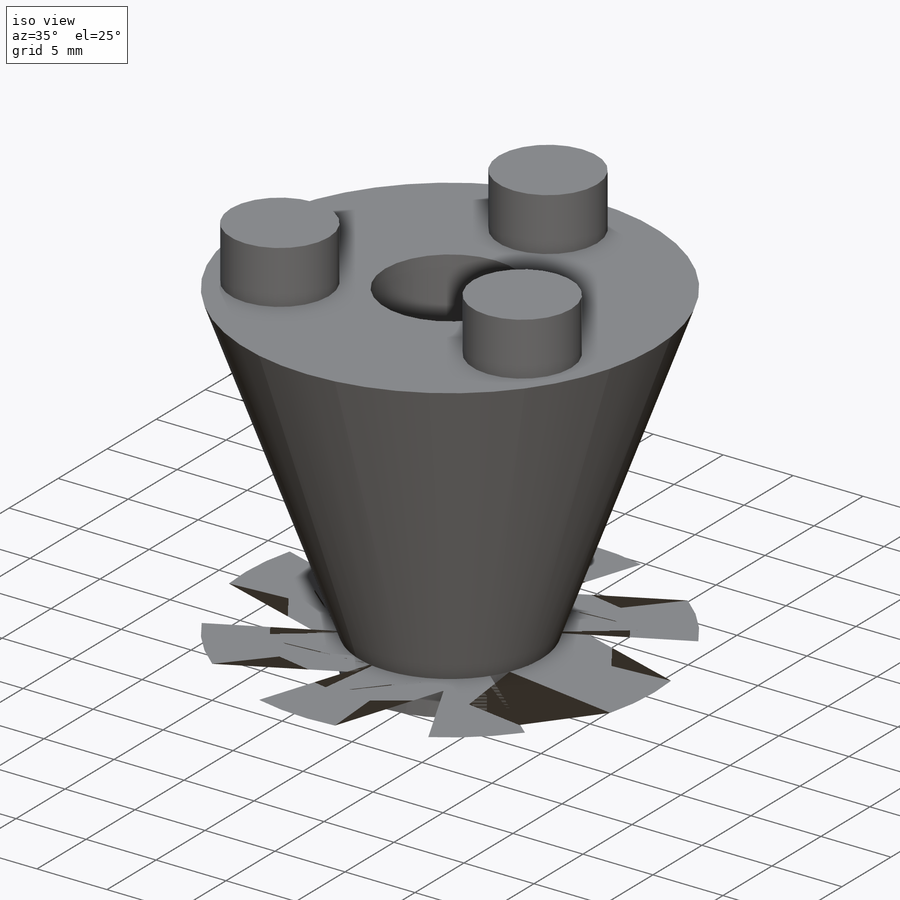
[diagram: iso view]
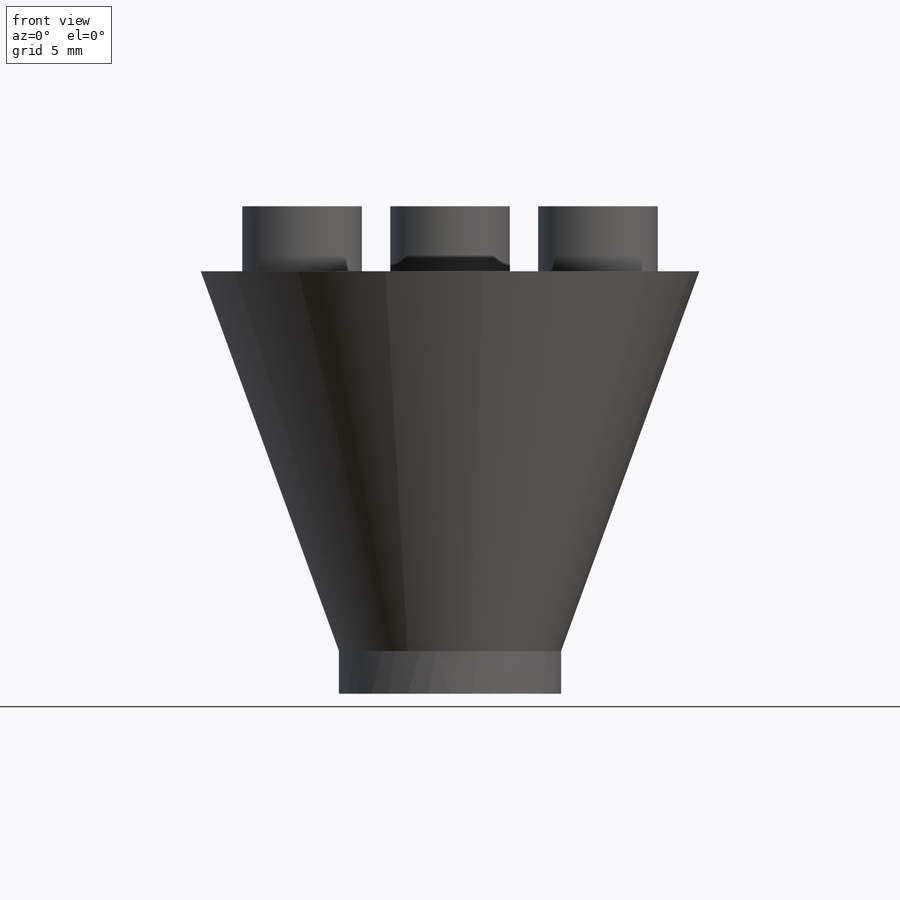
[diagram: front view]
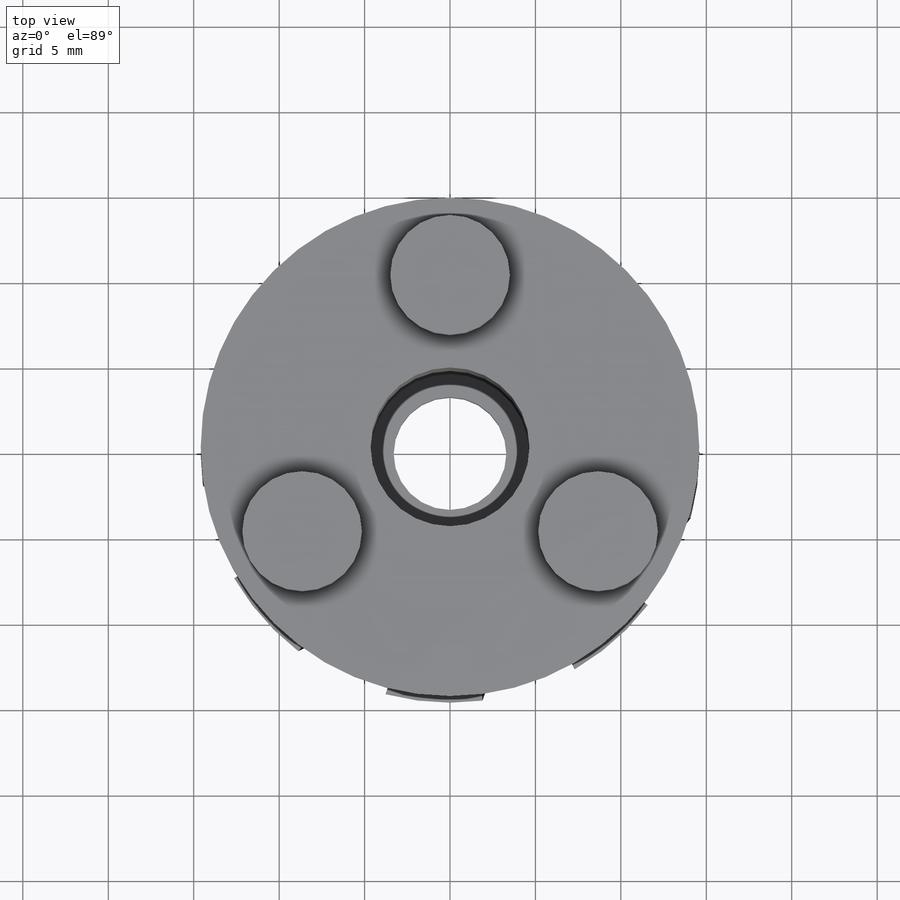
[diagram: top view]
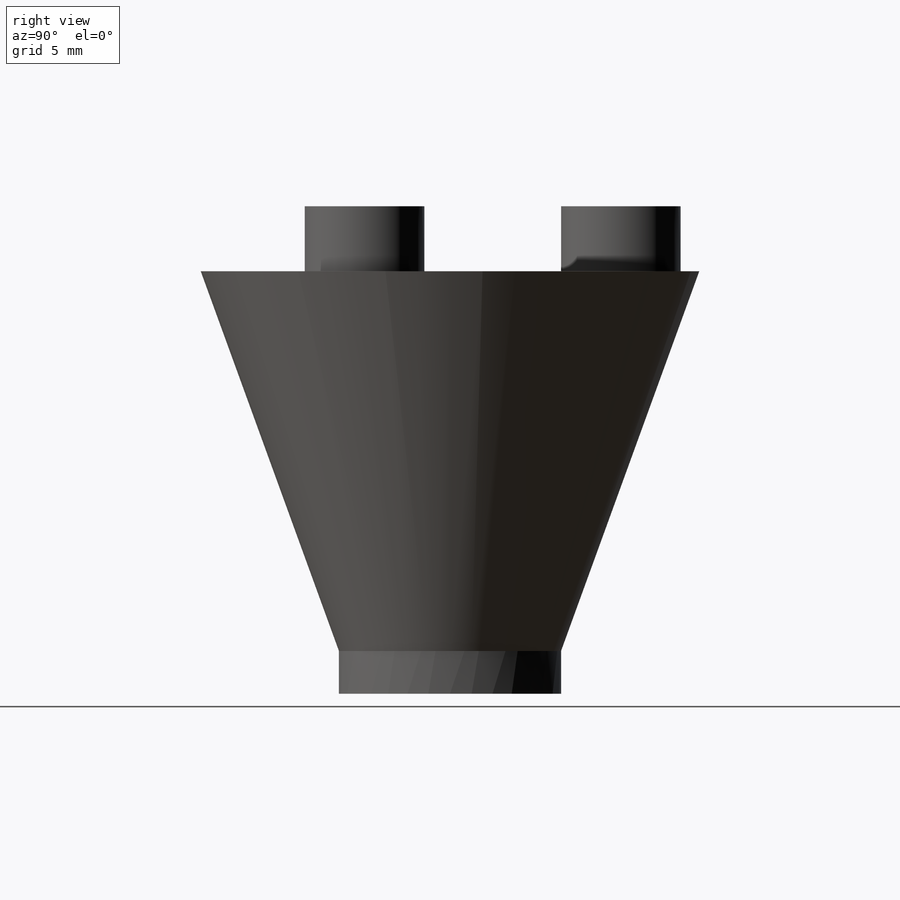
[diagram: right view]
SOLIDWORKS PART (.sldprt)
format: sldprt  version: not decoded by parser v0  size: 216,576 bytes
history: native  units: mm
features: sketch x4, extrude x3, material x1, cut_extrude x1 (+13 scaffold rows collapsed)
feature tree (22):
  scaffold x13  (default folders/planes/origin — collapsed)
  material  "Polyester Resin"
  sketch  "Sketch1"  dims[D1=5.04mm D2=9.5mm D7=13.0mm D3=8.7mm D4=8.7mm D5=8.7mm D6=8.7mm]
  extrude  "AngleBody"  Depth=22.225mm
  sketch  "Sketch2"  dims[D1=9.3mm D2=3.87mm D5=7.0mm D3=10.0mm D4=10.0mm]
  cut_extrude  "CenterHole"  [1 undecoded]
  extrude  "40tPegs"  [1 undecoded]
  sketch  "Sketch2<3>"  dims[D1=3.8mm]
  sketch  "Sketch3"  dims[D1=6.6mm]
  extrude  "20tInterface"  Depth=2.5mm
decode coverage: 6 of 8 modeling features carry decoded parameters
note: 2 parameter values undecoded
note: suppression state not decoded; provenance and decode notes live in map.json
